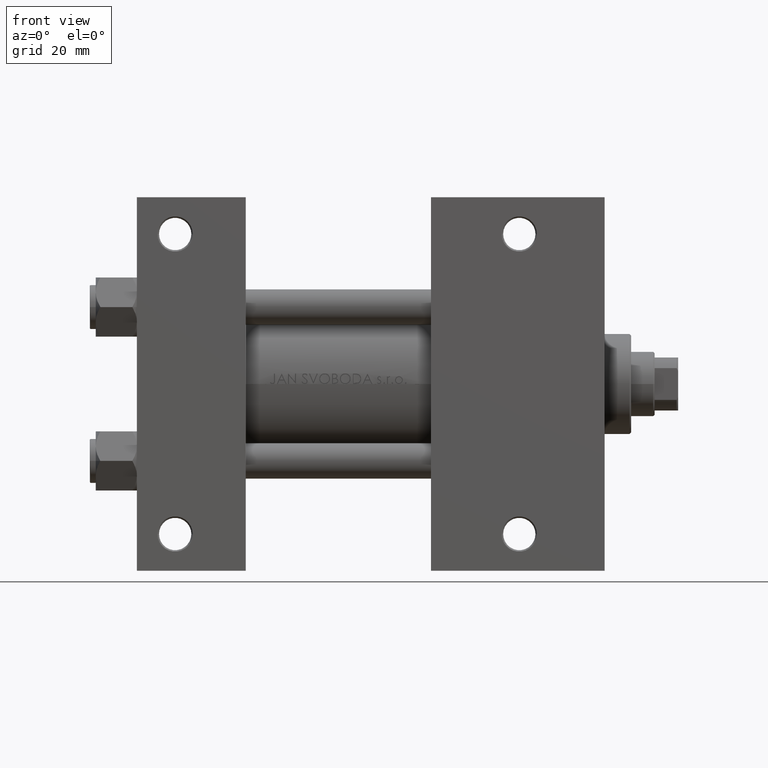
[diagram: clean part render]
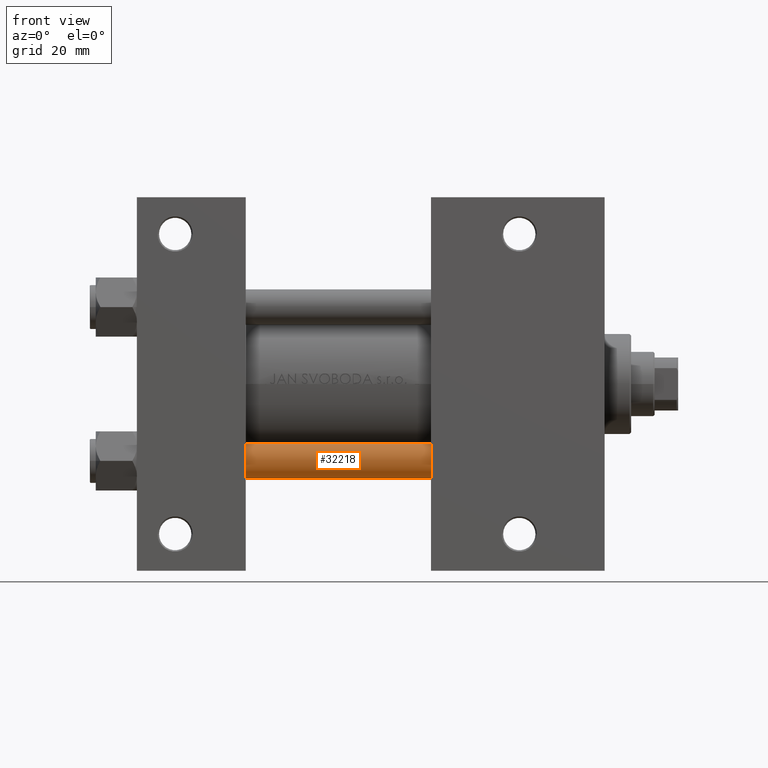
[diagram: same view with one face highlighted and labeled with its STEP entity id]
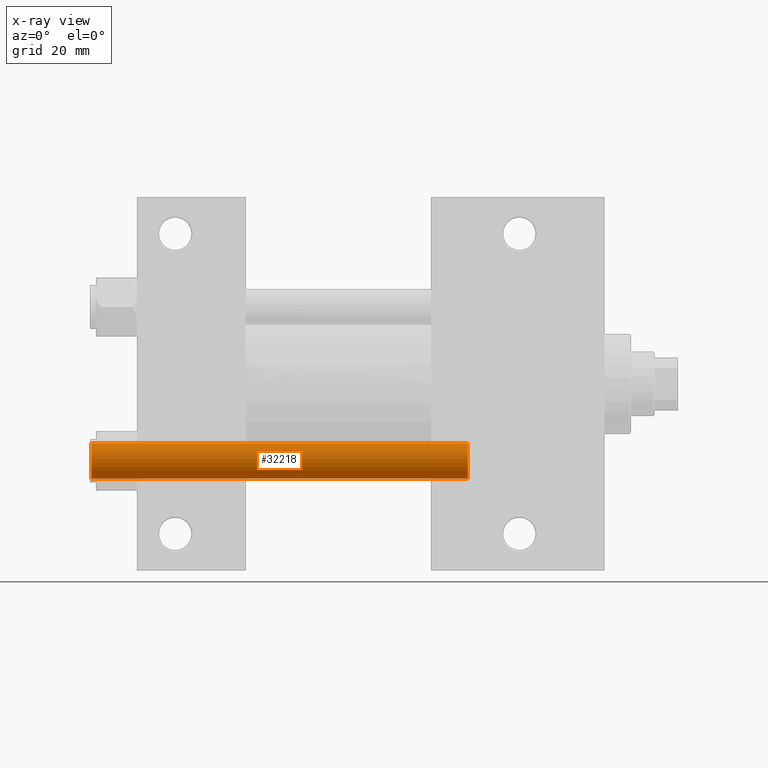
[diagram: x-ray of the same camera — body ghosted, the highlighted face saturated]
A machine part, front view. The second image highlights one B-rep face of the part: STEP entity #32218.
The next image is the same camera in x-ray: the body ghosted, the highlighted face saturated — about 0% of this face is hidden behind the body in this view.
In plain terms, the highlighted cylindrical surface (edge-blend (fillet) strip) has radius 6 mm, axis along (-1, 0, 0).
Its self-contained STEP definition (entity closure, byte-faithful):
#521 = DIRECTION ( 'NONE',  ( 1.000000000000000000, 0.000000000000000000, 0.000000000000000000 ) ) ;
#873 = VERTEX_POINT ( 'NONE', #19921 ) ;
#3025 = CARTESIAN_POINT ( 'NONE',  ( 0.000000000000000000, 0.000000000000000000, 129.0000000000000000 ) ) ;
#4447 = DIRECTION ( 'NONE',  ( 0.000000000000000000, 0.000000000000000000, -1.000000000000000000 ) ) ;
#4750 = VECTOR ( 'NONE', #35115, 1000.000000000000000 ) ;
#5249 = CARTESIAN_POINT ( 'NONE',  ( -6.000000000000000888, 0.000000000000000000, 128.4999999999999716 ) ) ;
#5720 = VERTEX_POINT ( 'NONE', #20709 ) ;
#6573 = VECTOR ( 'NONE', #9682, 1000.000000000000000 ) ;
#9682 = DIRECTION ( 'NONE',  ( -0.000000000000000000, -0.000000000000000000, -1.000000000000000000 ) ) ;
#10382 = CIRCLE ( 'NONE', #38221, 6.000000000000000888 ) ;
#14117 = ORIENTED_EDGE ( 'NONE', *, *, #20946, .F. ) ;
#16063 = ORIENTED_EDGE ( 'NONE', *, *, #27571, .T. ) ;
#17894 = LINE ( 'NONE', #21389, #6573 ) ;
#17956 = ORIENTED_EDGE ( 'NONE', *, *, #21297, .T. ) ;
#18950 = CYLINDRICAL_SURFACE ( 'NONE', #44868, 6.000000000000000888 ) ;
#18954 = CARTESIAN_POINT ( 'NONE',  ( 0.000000000000000000, 0.000000000000000000, 0.5000000000000004441 ) ) ;
#19637 = DIRECTION ( 'NONE',  ( 1.000000000000000000, 0.000000000000000000, 0.000000000000000000 ) ) ;
#19915 = DIRECTION ( 'NONE',  ( -0.000000000000000000, -0.000000000000000000, 1.000000000000000000 ) ) ;
#19921 = CARTESIAN_POINT ( 'NONE',  ( -6.000000000000000888, 0.000000000000000000, 0.5000000000000004441 ) ) ;
#19937 = CARTESIAN_POINT ( 'NONE',  ( -6.000000000000000888, 0.000000000000000000, 129.0000000000000000 ) ) ;
#20497 = VERTEX_POINT ( 'NONE', #23810 ) ;
#20709 = CARTESIAN_POINT ( 'NONE',  ( 6.000000000000000888, 7.347880794884120722E-16, 128.4999999999999716 ) ) ;
#20899 = VERTEX_POINT ( 'NONE', #5249 ) ;
#20946 = EDGE_CURVE ( 'NONE', #20899, #873, #39120, .T. ) ;
#21297 = EDGE_CURVE ( 'NONE', #20497, #873, #30212, .T. ) ;
#21389 = CARTESIAN_POINT ( 'NONE',  ( 6.000000000000000888, 7.347880794884120722E-16, 129.0000000000000000 ) ) ;
#22464 = EDGE_CURVE ( 'NONE', #20899, #5720, #10382, .T. ) ;
#23810 = CARTESIAN_POINT ( 'NONE',  ( 6.000000000000000888, 7.347880794884120722E-16, 0.5000000000000004441 ) ) ;
#27571 = EDGE_CURVE ( 'NONE', #5720, #20497, #17894, .T. ) ;
#30212 = CIRCLE ( 'NONE', #34185, 6.000000000000000888 ) ;
#30948 = ORIENTED_EDGE ( 'NONE', *, *, #22464, .T. ) ;
#32218 = ADVANCED_FACE ( 'NONE', ( #37878 ), #18950, .T. ) ;
#34185 = AXIS2_PLACEMENT_3D ( 'NONE', #18954, #19915, #521 ) ;
#35115 = DIRECTION ( 'NONE',  ( -0.000000000000000000, -0.000000000000000000, -1.000000000000000000 ) ) ;
#36947 = EDGE_LOOP ( 'NONE', ( #30948, #16063, #17956, #14117 ) ) ;
#37878 = FACE_OUTER_BOUND ( 'NONE', #36947, .T. ) ;
#38221 = AXIS2_PLACEMENT_3D ( 'NONE', #41564, #4447, #19637 ) ;
#39120 = LINE ( 'NONE', #19937, #4750 ) ;
#41564 = CARTESIAN_POINT ( 'NONE',  ( 0.000000000000000000, 0.000000000000000000, 128.4999999999999716 ) ) ;
#44627 = DIRECTION ( 'NONE',  ( -1.000000000000000000, 0.000000000000000000, 0.000000000000000000 ) ) ;
#44868 = AXIS2_PLACEMENT_3D ( 'NONE', #3025, #49093, #44627 ) ;
#49093 = DIRECTION ( 'NONE',  ( -0.000000000000000000, -0.000000000000000000, -1.000000000000000000 ) ) ;